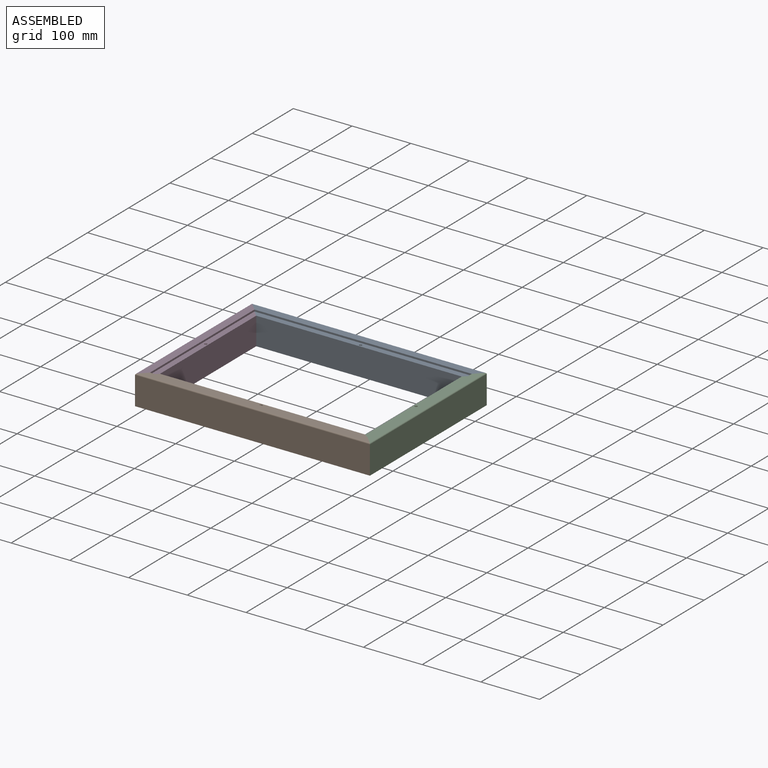
[diagram: assembled view]
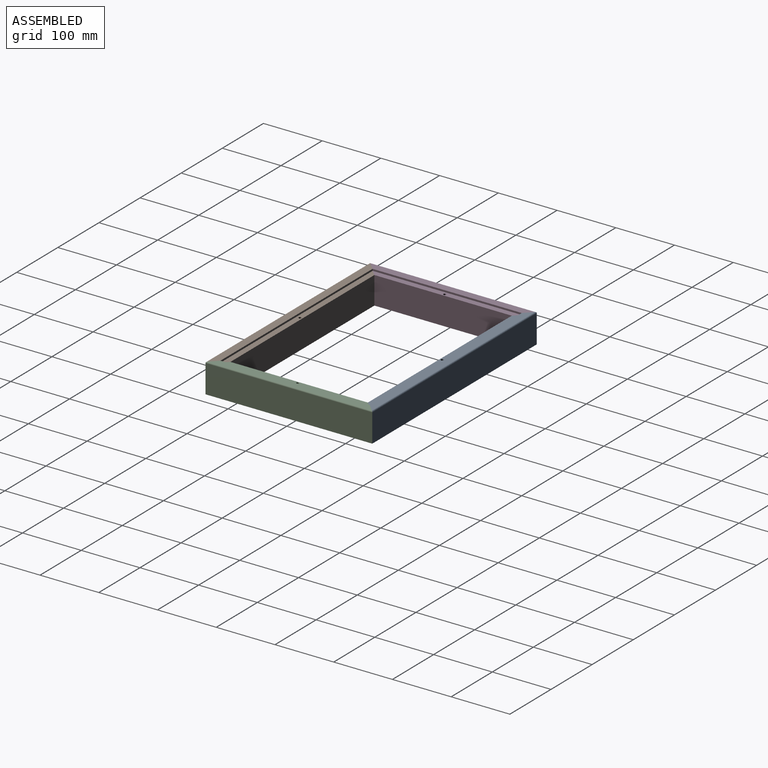
[diagram: assembled view, second angle]
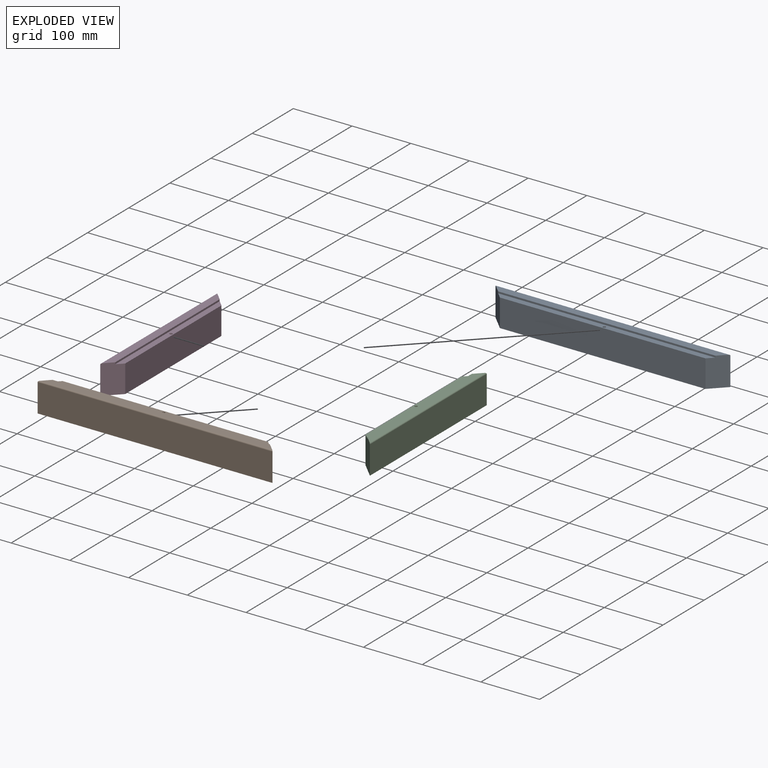
[diagram: exploded view]
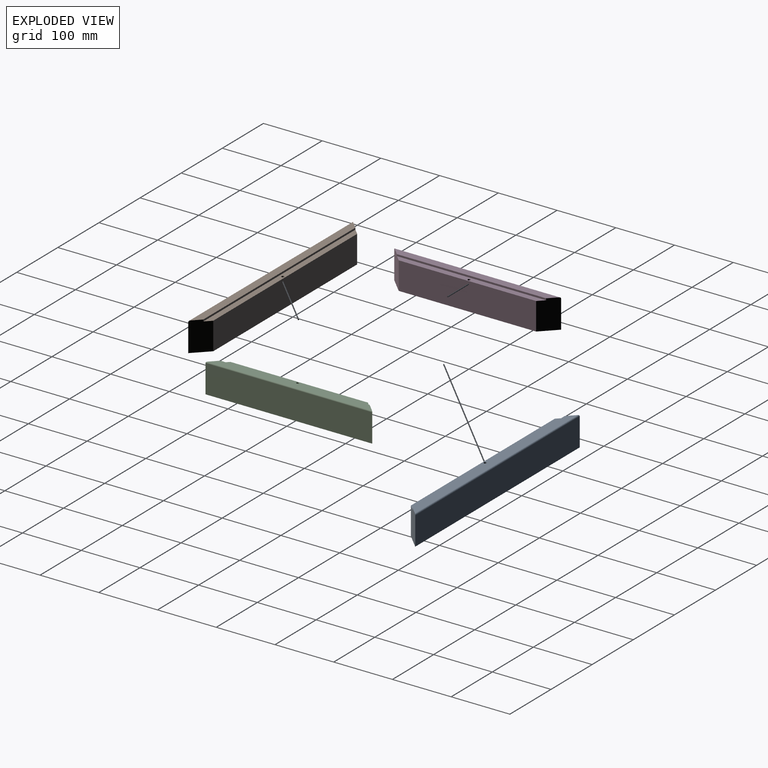
[diagram: exploded view, second angle]
ASSEMBLY  parts=4 mates=3
PART A: 11 faces, bbox 400x25x50 mm
  f0: plane 396x13mm, normal (0,0,1), area 4979mm2, adj f2,f5,f6,f10
  f1: plane 350x47mm, normal (0,1,0), area 16450mm2, adj f2,f3,f5,f7
  f2: plane 50x25mm, normal (0.71,0.71,0), area 1724.1mm2, adj f0,f1,f3,f4,f6,f7,f10
  f3: plane 400x25mm, normal (0,0,-1), area 9375mm2, adj f1,f2,f4,f5
  f4: plane 400x48mm, normal (0,-1,0), area 19200mm2, adj f2,f3,f5,f10
  f5: plane 50x25mm, normal (-0.71,0.71,0), area 1724.1mm2, adj f0,f1,f3,f4,f6,f7,f10
  f6: plane 370x3mm, normal (0,1,0), area 1110mm2, adj f0,f2,f5,f7
  f7: plane 370x10mm, normal (0,0,1), area 3583.4mm2, adj f1,f2,f5,f6,f8
  f8: cylinder r=2.3mm len=8mm, axis (0,0,1), area 115.6mm2, adj f7,f9
  f9: cone r=0mm half-angle=59deg, axis (0,0,1), area 19.4mm2, adj f8
  f10: cylinder r=2mm len=400mm, axis (1,0,0), area 1252.1mm2, adj f0,f2,f4,f5
PART B: same geometry as A
PART C: 11 faces, bbox 284x25x50 mm
  f0: plane 280x13mm, normal (0,0,1), area 3471mm2, adj f2,f5,f6,f10
  f1: plane 234x47mm, normal (0,1,0), area 10998mm2, adj f2,f3,f5,f7
  f2: plane 50x25mm, normal (0.71,0.71,0), area 1724.1mm2, adj f0,f1,f3,f4,f6,f7,f10
  f3: plane 284x25mm, normal (0,0,-1), area 6475mm2, adj f1,f2,f4,f5
  f4: plane 284x48mm, normal (0,-1,0), area 13632mm2, adj f2,f3,f5,f10
  f5: plane 50x25mm, normal (-0.71,0.71,0), area 1724.1mm2, adj f0,f1,f3,f4,f6,f7,f10
  f6: plane 254x3mm, normal (0,1,0), area 762mm2, adj f0,f2,f5,f7
  f7: plane 254x10mm, normal (0,0,1), area 2423.4mm2, adj f1,f2,f5,f6,f8
  f8: cylinder r=2.3mm len=8mm, axis (0,0,1), area 115.6mm2, adj f7,f9
  f9: cone r=0mm half-angle=59deg, axis (0,0,1), area 19.4mm2, adj f8
  f10: cylinder r=2mm len=284mm, axis (1,0,0), area 887.6mm2, adj f0,f2,f4,f5
PART D: same geometry as C
PLACE A rot(axis=(0,0,-1),180deg) t=(-208.21,214.84,86.15)mm
PLACE B t=(-208.21,-19.16,86.15)mm
PLACE C rot(axis=(0,0,1),90deg) t=(-33.21,97.84,86.15)mm
PLACE D rot(axis=(0,0,-1),90deg) t=(-383.21,97.84,86.15)mm
MATE fastened D.f2 <-> B.f5  axis (0.71,-0.71,0) through (-395.88,-31.84,85.56)mm
MATE fastened C.f5 <-> B.f2  axis (-0.71,-0.71,0) through (-20.53,-31.84,85.56)mm
MATE fastened A.f2 <-> D.f5  axis (-0.71,-0.71,0) through (-395.88,227.51,85.56)mm
